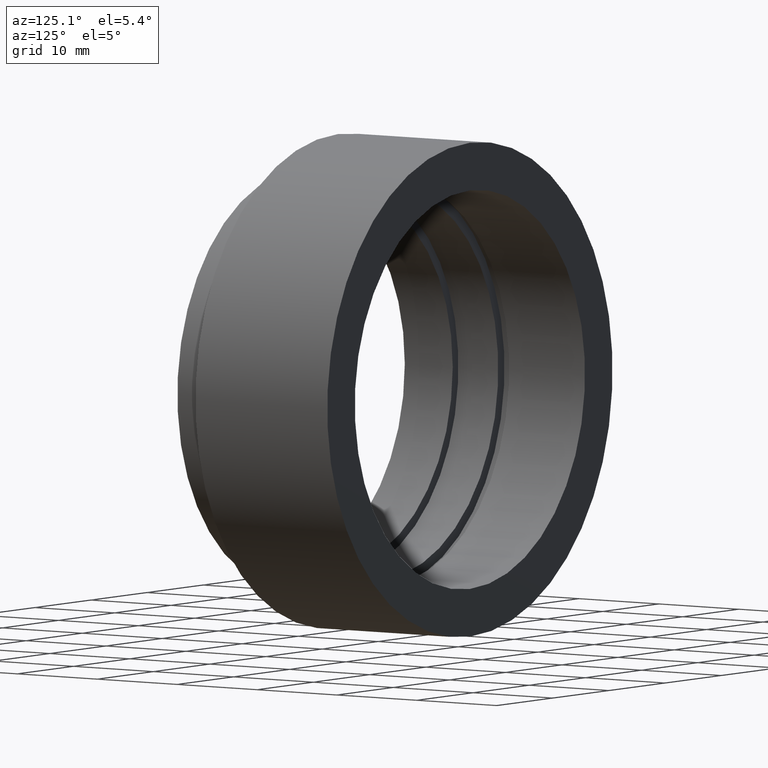
[diagram: clean part render]
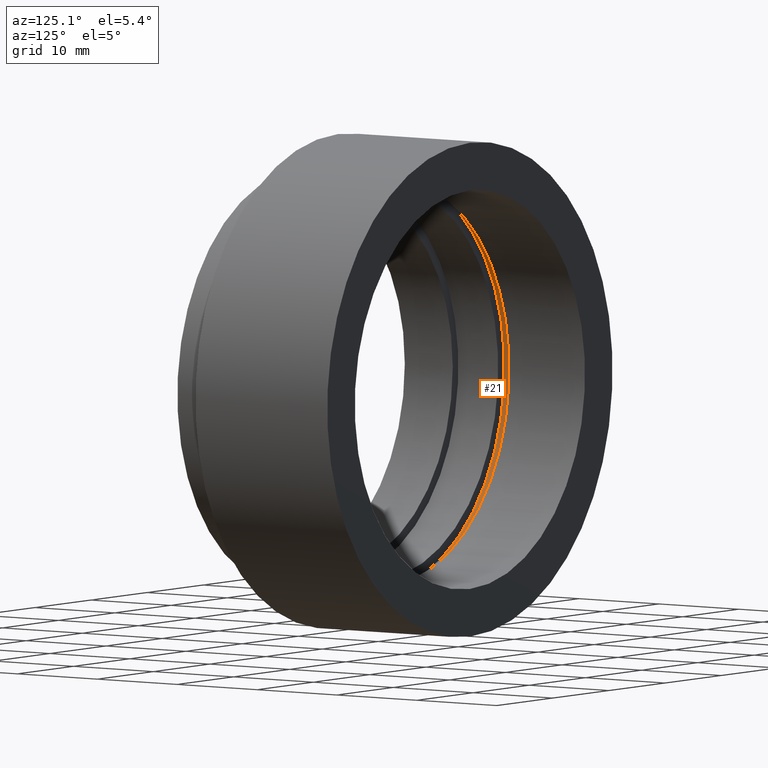
[diagram: same view with one face highlighted and labeled with its STEP entity id]
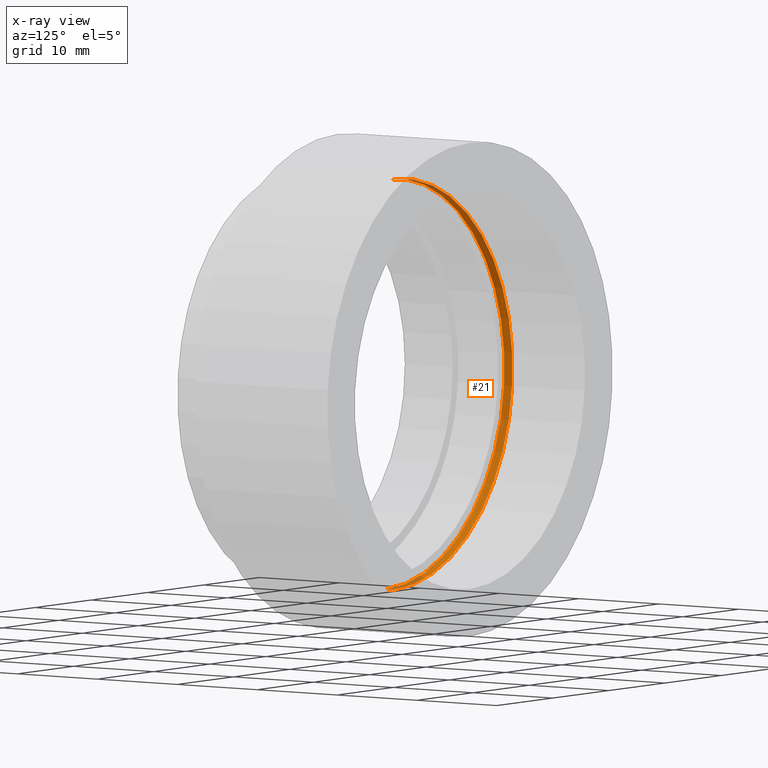
[diagram: x-ray of the same camera — body ghosted, the highlighted face saturated]
A machine part, auxiliary view. The second image highlights one B-rep face of the part: STEP entity #21.
The next image is the same camera in x-ray: the body ghosted, the highlighted face saturated — about 8% of this face is hidden behind the body in this view.
In plain terms, the highlighted cylindrical surface (partial cylindrical patch) has radius 21.1 mm, axis along (-0, -1, -0).
Its self-contained STEP definition (entity closure, byte-faithful):
#11 = VECTOR ( 'NONE', #233, 1000.000000000000000 ) ;
#15 = CARTESIAN_POINT ( 'NONE',  ( 0.0000000000000000000, 0.0000000000000000000, -21.10000000000000100 ) ) ;
#21 = ADVANCED_FACE ( 'NONE', ( #478 ), #559, .F. ) ;
#28 = VECTOR ( 'NONE', #461, 1000.000000000000000 ) ;
#31 = LINE ( 'NONE', #432, #28 ) ;
#36 = AXIS2_PLACEMENT_3D ( 'NONE', #564, #548, #71 ) ;
#41 = ORIENTED_EDGE ( 'NONE', *, *, #232, .T. ) ;
#65 = LINE ( 'NONE', #15, #11 ) ;
#71 = DIRECTION ( 'NONE',  ( 0.0000000000000000000, 0.0000000000000000000, -1.000000000000000000 ) ) ;
#78 = CARTESIAN_POINT ( 'NONE',  ( 0.0000000000000000000, 11.00000000000000200, 0.0000000000000000000 ) ) ;
#95 = DIRECTION ( 'NONE',  ( -0.0000000000000000000, -1.000000000000000000, -0.0000000000000000000 ) ) ;
#112 = AXIS2_PLACEMENT_3D ( 'NONE', #441, #95, #628 ) ;
#151 = CARTESIAN_POINT ( 'NONE',  ( 2.584004746200915400E-015, 12.00000000000000000, 21.10000000000000100 ) ) ;
#225 = CARTESIAN_POINT ( 'NONE',  ( 0.0000000000000000000, 11.00000000000000200, -21.10000000000000100 ) ) ;
#232 = EDGE_CURVE ( 'NONE', #370, #507, #583, .T. ) ;
#233 = DIRECTION ( 'NONE',  ( -0.0000000000000000000, -1.000000000000000000, -0.0000000000000000000 ) ) ;
#251 = EDGE_CURVE ( 'NONE', #320, #480, #649, .T. ) ;
#255 = ORIENTED_EDGE ( 'NONE', *, *, #605, .T. ) ;
#306 = EDGE_LOOP ( 'NONE', ( #417, #255, #41, #598 ) ) ;
#320 = VERTEX_POINT ( 'NONE', #151 ) ;
#370 = VERTEX_POINT ( 'NONE', #397 ) ;
#397 = CARTESIAN_POINT ( 'NONE',  ( 2.584004746200915400E-015, 11.00000000000000200, 21.10000000000000100 ) ) ;
#404 = AXIS2_PLACEMENT_3D ( 'NONE', #78, #654, #600 ) ;
#417 = ORIENTED_EDGE ( 'NONE', *, *, #251, .F. ) ;
#432 = CARTESIAN_POINT ( 'NONE',  ( 2.584004746200915400E-015, 0.0000000000000000000, 21.10000000000000100 ) ) ;
#441 = CARTESIAN_POINT ( 'NONE',  ( 0.0000000000000000000, 12.00000000000000000, 0.0000000000000000000 ) ) ;
#461 = DIRECTION ( 'NONE',  ( -0.0000000000000000000, -1.000000000000000000, -0.0000000000000000000 ) ) ;
#478 = FACE_OUTER_BOUND ( 'NONE', #306, .T. ) ;
#480 = VERTEX_POINT ( 'NONE', #485 ) ;
#485 = CARTESIAN_POINT ( 'NONE',  ( 0.0000000000000000000, 12.00000000000000000, -21.10000000000000100 ) ) ;
#507 = VERTEX_POINT ( 'NONE', #225 ) ;
#548 = DIRECTION ( 'NONE',  ( -0.0000000000000000000, -1.000000000000000000, -0.0000000000000000000 ) ) ;
#559 = CYLINDRICAL_SURFACE ( 'NONE', #36, 21.10000000000000100 ) ;
#564 = CARTESIAN_POINT ( 'NONE',  ( 0.0000000000000000000, 0.0000000000000000000, 0.0000000000000000000 ) ) ;
#583 = CIRCLE ( 'NONE', #404, 21.10000000000000100 ) ;
#598 = ORIENTED_EDGE ( 'NONE', *, *, #632, .F. ) ;
#600 = DIRECTION ( 'NONE',  ( 0.0000000000000000000, 0.0000000000000000000, -1.000000000000000000 ) ) ;
#605 = EDGE_CURVE ( 'NONE', #320, #370, #31, .T. ) ;
#628 = DIRECTION ( 'NONE',  ( 0.0000000000000000000, 0.0000000000000000000, -1.000000000000000000 ) ) ;
#632 = EDGE_CURVE ( 'NONE', #480, #507, #65, .T. ) ;
#649 = CIRCLE ( 'NONE', #112, 21.10000000000000100 ) ;
#654 = DIRECTION ( 'NONE',  ( -0.0000000000000000000, -1.000000000000000000, -0.0000000000000000000 ) ) ;